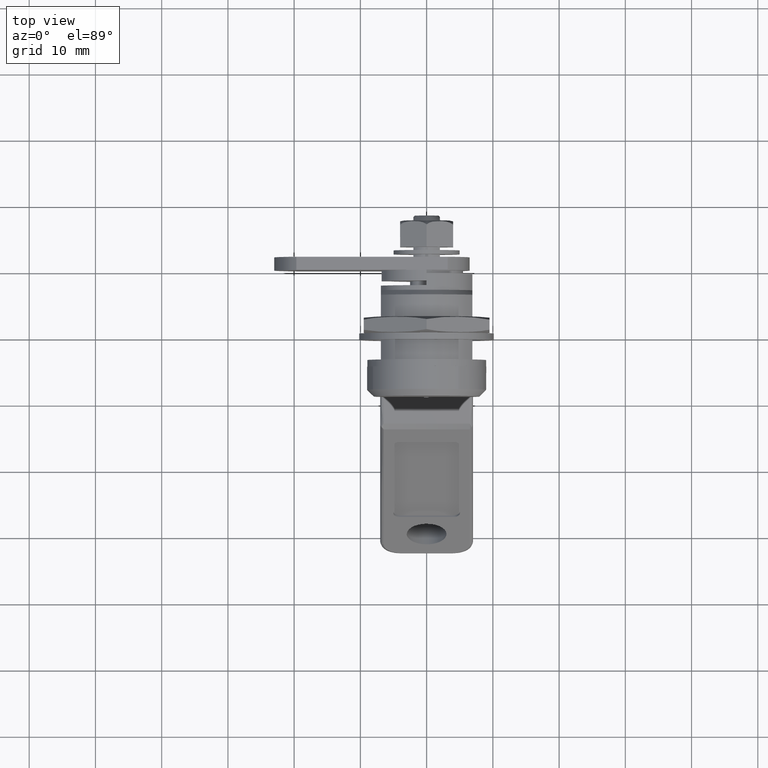
[diagram: clean part render]
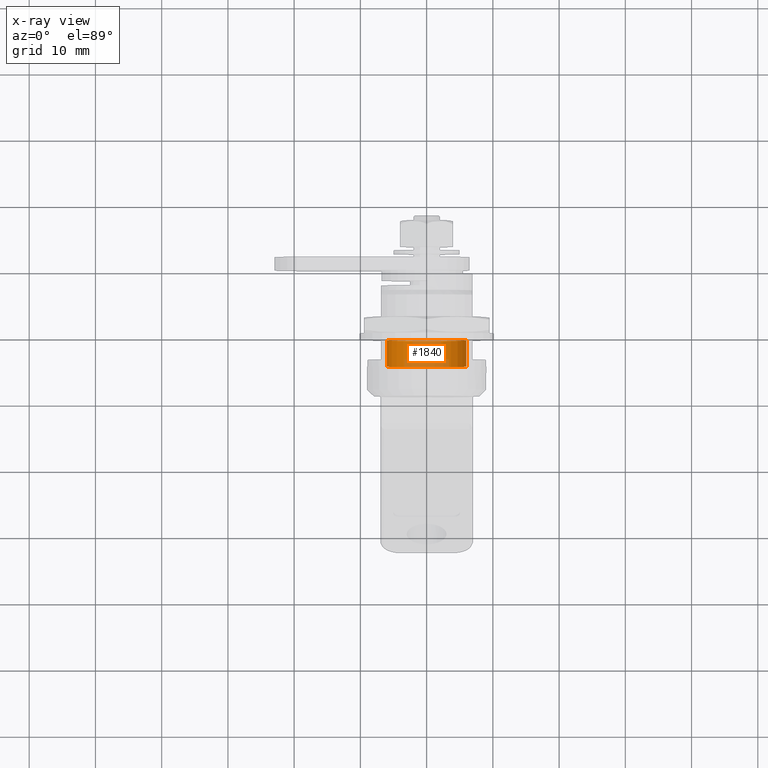
[diagram: x-ray — body ghosted, one internal face saturated and labeled with its STEP entity id]
A machine part, top view, then the same camera in x-ray: the body is ghosted and one INTERNAL B-rep face — a face not visible from any outside direction — is saturated and labeled: STEP entity #1840.
In plain terms, the highlighted face is a freeform B-spline surface patch.
Its self-contained STEP definition (entity closure, byte-faithful):
#1738=CARTESIAN_POINT('',(8.600002049999903,5.958057158181998,0.708205407940551));
#1739=CARTESIAN_POINT('',(8.600002049999901,5.978325692691634,0.537688371827866));
#1740=CARTESIAN_POINT('',(8.600002049999901,5.988808790531200,0.366291237209142));
#1741=CARTESIAN_POINT('',(8.600002049999901,6.355100027740342,-5.622517553322059));
#1742=CARTESIAN_POINT('',(8.600002049999901,0.366291237209142,-5.988808790531200));
#1743=CARTESIAN_POINT('',(8.600002049999901,-5.622517553322059,-6.355100027740342));
#1744=CARTESIAN_POINT('',(8.600002049999901,-5.988808790531200,-0.366291237209142));
#1745=CARTESIAN_POINT('',(4.397499948750002,5.958057158181998,0.708205407940551));
#1746=CARTESIAN_POINT('',(4.397499948750002,5.978325692691634,0.537688371827866));
#1747=CARTESIAN_POINT('',(4.397499948750002,5.988808790531200,0.366291237209142));
#1748=CARTESIAN_POINT('',(4.397499948750003,6.355100027740342,-5.622517553322059));
#1749=CARTESIAN_POINT('',(4.397499948750002,0.366291237209142,-5.988808790531200));
#1750=CARTESIAN_POINT('',(4.397499948750003,-5.622517553322059,-6.355100027740342));
#1751=CARTESIAN_POINT('',(4.397499948750002,-5.988808790531200,-0.366291237209142));
#1759=(BOUNDED_SURFACE()B_SPLINE_SURFACE(2,1,((#1738,#1745),(#1739,#1746),(#1740,#1747),(#1741,#1748),(#1742,#1749),(#1743,#1750),(#1744,#1751)),.UNSPECIFIED.,.F.,.F.,.U.)B_SPLINE_SURFACE_WITH_KNOTS((3,2,2,3),(2,2),(0.0,0.397645019878172,10.338770516832451,20.279896013786729),(0.0,4.202502101249901),.UNSPECIFIED.)GEOMETRIC_REPRESENTATION_ITEM()RATIONAL_B_SPLINE_SURFACE(((0.977505800795127,0.977505800795127),(0.988284271247462,0.988284271247462),(1.0,1.0),(0.707106781186548,0.707106781186548),(1.0,1.0),(0.707106781186548,0.707106781186548),(1.0,1.0)))REPRESENTATION_ITEM('')SURFACE());
#1760=CARTESIAN_POINT('',(8.500001999999281,5.958058477431563,0.708194309057161));
#1761=VERTEX_POINT('',#1760);
#1762=CARTESIAN_POINT('',(8.500001999999901,0.0,-6.0));
#1763=VERTEX_POINT('',#1762);
#1764=CARTESIAN_POINT('',(8.500001999999281,5.958058477431563,0.708194309057161));
#1765=CARTESIAN_POINT('',(8.500001999999901,6.0,0.355339109803328));
#1766=CARTESIAN_POINT('',(8.500001999999901,6.0,0.0));
#1767=CARTESIAN_POINT('',(8.500001999999901,6.0,-6.0));
#1768=CARTESIAN_POINT('',(8.500001999999901,0.0,-6.0));
#1776=(BOUNDED_CURVE()B_SPLINE_CURVE(2,(#1764,#1765,#1766,#1767,#1768),.UNSPECIFIED.,.F.,.U.)B_SPLINE_CURVE_WITH_KNOTS((3,2,3),(0.229562788341016,0.250000000000000,0.500000000000000),.UNSPECIFIED.)CURVE()GEOMETRIC_REPRESENTATION_ITEM()RATIONAL_B_SPLINE_CURVE((0.956027371259426,0.976056317174513,1.0,0.707106781186548,1.0))REPRESENTATION_ITEM(''));
#1777=EDGE_CURVE('',#1761,#1763,#1776,.T.);
#1778=ORIENTED_EDGE('',*,*,#1777,.F.);
#1779=CARTESIAN_POINT('',(4.500000000000000,5.958058461576309,0.708194442449953));
#1780=VERTEX_POINT('',#1779);
#1781=CARTESIAN_POINT('',(8.500001999999281,5.958058477431563,0.708194309057161));
#1782=CARTESIAN_POINT('',(4.500000000000000,5.958058461576309,0.708194442449953));
#1783=QUASI_UNIFORM_CURVE('',1,(#1781,#1782),.UNSPECIFIED.,.F.,.U.);
#1784=EDGE_CURVE('',#1761,#1780,#1783,.T.);
#1785=ORIENTED_EDGE('',*,*,#1784,.T.);
#1786=CARTESIAN_POINT('',(4.500000000000000,0.0,-6.0));
#1787=VERTEX_POINT('',#1786);
#1788=CARTESIAN_POINT('',(4.499999999999999,5.958058461576309,0.708194442449953));
#1789=CARTESIAN_POINT('',(4.500000000000001,6.0,0.355339177204793));
#1790=CARTESIAN_POINT('',(4.500000000000000,6.0,0.0));
#1791=CARTESIAN_POINT('',(4.500000000000000,6.0,-6.0));
#1792=CARTESIAN_POINT('',(4.500000000000000,0.0,-6.0));
#1800=(BOUNDED_CURVE()B_SPLINE_CURVE(2,(#1788,#1789,#1790,#1791,#1792),.UNSPECIFIED.,.F.,.U.)B_SPLINE_CURVE_WITH_KNOTS((3,2,3),(0.229562784557262,0.250000000000000,0.500000000000000),.UNSPECIFIED.)CURVE()GEOMETRIC_REPRESENTATION_ITEM()RATIONAL_B_SPLINE_CURVE((0.956027363843092,0.976056312741570,1.0,0.707106781186548,1.0))REPRESENTATION_ITEM(''));
#1801=EDGE_CURVE('',#1780,#1787,#1800,.T.);
#1802=ORIENTED_EDGE('',*,*,#1801,.T.);
#1803=CARTESIAN_POINT('',(4.500000000000000,-5.988808790518038,-0.366291237424361));
#1804=VERTEX_POINT('',#1803);
#1805=CARTESIAN_POINT('',(4.500000000000000,0.0,-6.0));
#1806=CARTESIAN_POINT('',(4.499999999999999,-5.644236401027712,-5.999999999999999));
#1807=CARTESIAN_POINT('',(4.500000000000000,-5.988808790518038,-0.366291237424361));
#1815=(BOUNDED_CURVE()B_SPLINE_CURVE(2,(#1805,#1806,#1807),.UNSPECIFIED.,.F.,.U.)B_SPLINE_CURVE_WITH_KNOTS((3,3),(0.500000000000000,0.739332962229566),.UNSPECIFIED.)CURVE()GEOMETRIC_REPRESENTATION_ITEM()RATIONAL_B_SPLINE_CURVE((1.0,0.719603993297696,0.976072041646621))REPRESENTATION_ITEM(''));
#1816=EDGE_CURVE('',#1787,#1804,#1815,.T.);
#1817=ORIENTED_EDGE('',*,*,#1816,.T.);
#1818=CARTESIAN_POINT('',(8.500001999999901,-5.988808790518038,-0.366291237424361));
#1819=VERTEX_POINT('',#1818);
#1820=CARTESIAN_POINT('',(8.500001999999901,-5.988808790518038,-0.366291237424361));
#1821=CARTESIAN_POINT('',(4.500000000000000,-5.988808790518038,-0.366291237424361));
#1822=QUASI_UNIFORM_CURVE('',1,(#1820,#1821),.UNSPECIFIED.,.F.,.U.);
#1823=EDGE_CURVE('',#1819,#1804,#1822,.T.);
#1824=ORIENTED_EDGE('',*,*,#1823,.F.);
#1825=CARTESIAN_POINT('',(8.500001999999901,0.0,-6.0));
#1826=CARTESIAN_POINT('',(8.500001999999899,-5.644236401027712,-5.999999999999999));
#1827=CARTESIAN_POINT('',(8.500001999999901,-5.988808790518038,-0.366291237424361));
#1835=(BOUNDED_CURVE()B_SPLINE_CURVE(2,(#1825,#1826,#1827),.UNSPECIFIED.,.F.,.U.)B_SPLINE_CURVE_WITH_KNOTS((3,3),(0.500000000000000,0.739332962229566),.UNSPECIFIED.)CURVE()GEOMETRIC_REPRESENTATION_ITEM()RATIONAL_B_SPLINE_CURVE((1.0,0.719603993297696,0.976072041646621))REPRESENTATION_ITEM(''));
#1836=EDGE_CURVE('',#1763,#1819,#1835,.T.);
#1837=ORIENTED_EDGE('',*,*,#1836,.F.);
#1838=EDGE_LOOP('',(#1778,#1785,#1802,#1817,#1824,#1837));
#1839=FACE_OUTER_BOUND('',#1838,.T.);
#1840=ADVANCED_FACE('',(#1839),#1759,.F.);